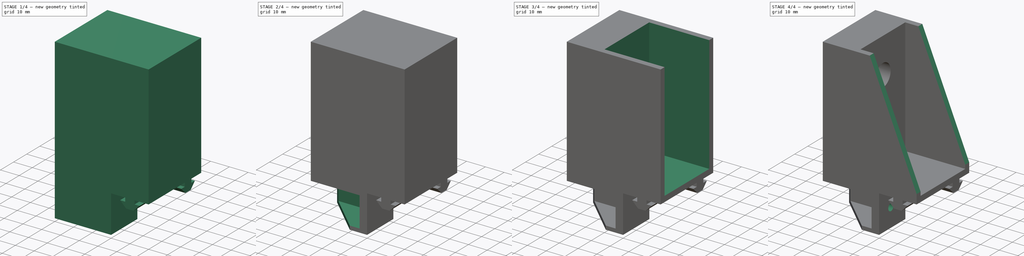
[diagram: build sequence overview — one tinted view per stage of 4, left to right]
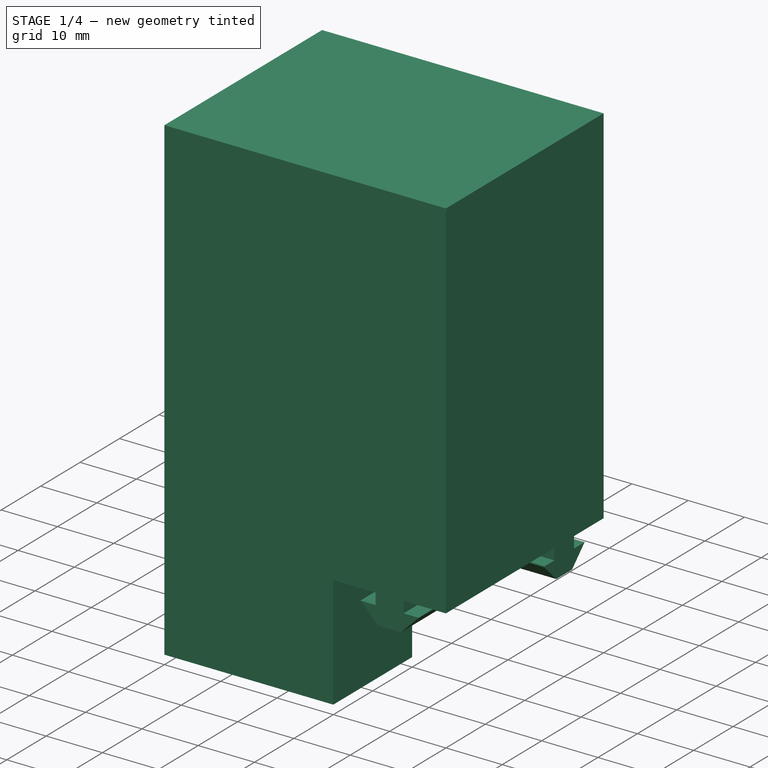
[diagram: stage 1 of 4 — iso view after this stage's code; geometry added in this stage tinted green]
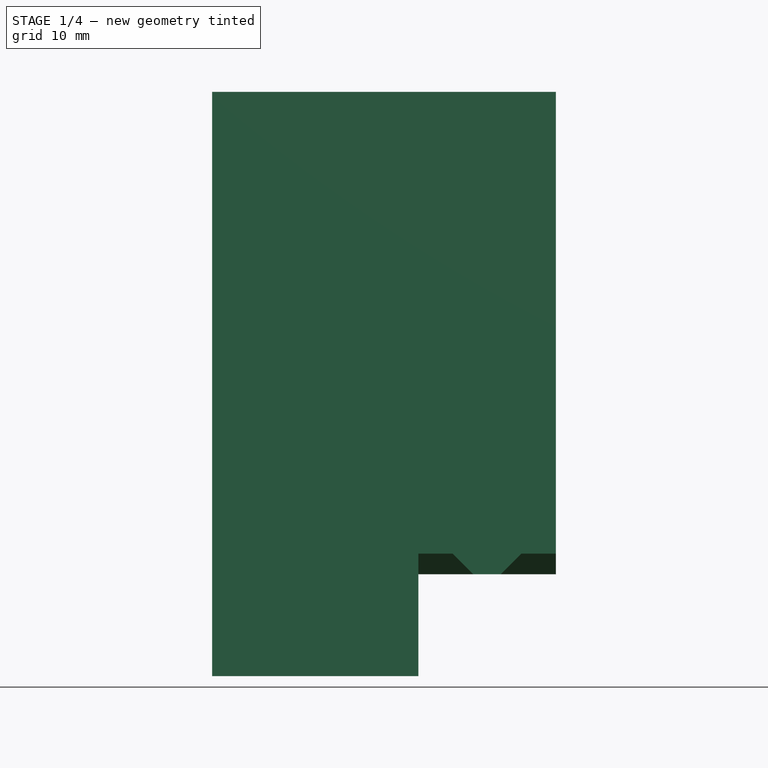
[diagram: stage 1 of 4 — front view after this stage's code; geometry added in this stage tinted green]
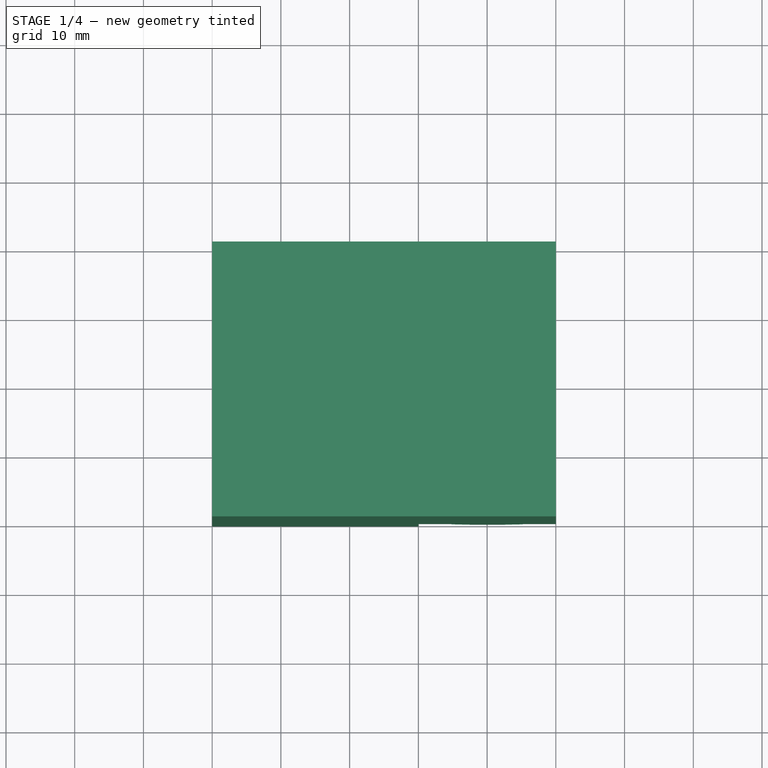
[diagram: stage 1 of 4 — top view after this stage's code; geometry added in this stage tinted green]
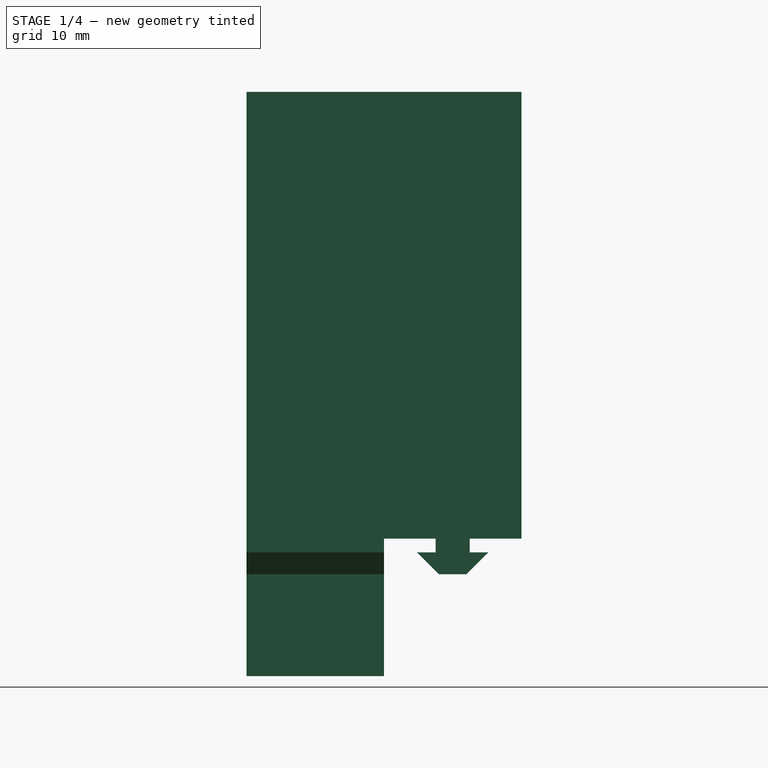
[diagram: stage 1 of 4 — right view after this stage's code; geometry added in this stage tinted green]
FCSTD DOCUMENT  (FreeCAD 0.18R4 (GitTag))
Label: corner-right-engine - Copie
License: All rights reserved
LicenseURL: http://en.wikipedia.org/wiki/All_rights_reserved
objects: Sketcher::SketchObject×11, PartDesign::Pocket×10, PartDesign::Pad×1, PartDesign::Body×1
note: 34 computed .brp shape members not serialized (recipe doc carries the construction recipe); baked Part::Feature solids carry a one-line shape summary decoded from their .brp

FEATURE [Sketcher::SketchObject] Sketch
  MapMode = 5
  Placement = pos=(0,0,0) rot=(0.57735,0.57735,0.57735;2.0944rad)
  Support = -> [YZ_Plane]
  sketch-geometry (4):
    g0: LineSegment StartX=-20 StartY=42.5 StartZ=0 EndX=20 EndY=42.5 EndZ=0
    g1: LineSegment StartX=20 StartY=42.5 StartZ=0 EndX=20 EndY=-42.5 EndZ=0
    g2: LineSegment StartX=20 StartY=-42.5 StartZ=0 EndX=-20 EndY=-42.5 EndZ=0
    g3: LineSegment StartX=-20 StartY=-42.5 StartZ=0 EndX=-20 EndY=42.5 EndZ=0
  constraints (11):
    c: Coincident(g0,g1)
    c: Coincident(g1,g2)
    c: Coincident(g2,g3)
    c: Coincident(g3,g0)
    c: Horizontal(g0)
    c: Horizontal(g2)
    c: Vertical(g1)
    c: Vertical(g3)
    c: DistanceY(g3,g3) = 85
    c: DistanceX(g2,g2) = 40
    c: Symmetric(g0,g1,g-1)
FEATURE [PartDesign::Pad] Pad
  Length = 50
  Length2 = 100
  Placement = pos=(0,0,0) rot=(0.57735,0.57735,0.57735;2.0944rad)
  Profile = -> Sketch
  Type = 0
FEATURE [Sketcher::SketchObject] Sketch001
  ExternalGeometry = -> [Pad]
  MapMode = 5
  Placement = pos=(50,-2.22e-14,1.67e-14) rot=(0.57735,0.57735,0.57735;2.0944rad)
  Support = -> [Pad]
  sketch-geometry (14):
    g0: LineSegment [constr] StartX=20 StartY=-22.5 StartZ=0 EndX=-7.1e-15 EndY=-22.5 EndZ=0
    g1: LineSegment StartX=-6e-15 StartY=-22.5 StartZ=0 EndX=-6e-15 EndY=-42.5 EndZ=0
    g2: LineSegment [constr] StartX=10 StartY=-22.5 StartZ=0 EndX=10 EndY=-44.2673 EndZ=0
    g3: LineSegment StartX=7.51604 StartY=-22.5 StartZ=0 EndX=7.51604 EndY=-24.5 EndZ=0
    g4: LineSegment StartX=7.51604 StartY=-24.5 StartZ=0 EndX=4.81604 EndY=-24.5 EndZ=0
    g5: LineSegment StartX=4.81604 StartY=-24.5 StartZ=0 EndX=8 EndY=-27.68 EndZ=0
    g6: LineSegment StartX=8 StartY=-27.68 StartZ=0 EndX=12 EndY=-27.68 EndZ=0
    g7: LineSegment StartX=12 StartY=-27.68 StartZ=0 EndX=15.184 EndY=-24.5 EndZ=0
    g8: LineSegment StartX=15.184 StartY=-24.5 StartZ=0 EndX=12.484 EndY=-24.5 EndZ=0
    g9: LineSegment StartX=12.484 StartY=-24.5 StartZ=0 EndX=12.484 EndY=-22.5 EndZ=0
    g10: LineSegment StartX=-6e-15 StartY=-42.5 StartZ=0 EndX=20 EndY=-42.5 EndZ=0
    g11: LineSegment StartX=20 StartY=-22.5 StartZ=0 EndX=20 EndY=-42.5 EndZ=0
    g12: LineSegment StartX=-6e-15 StartY=-22.5 StartZ=0 EndX=7.51604 EndY=-22.5 EndZ=0
    g13: LineSegment StartX=12.484 StartY=-22.5 StartZ=0 EndX=20 EndY=-22.5 EndZ=0
  constraints (38):
    c: PointOnObject(g0,g-3)
    c: Horizontal(g0)
    c: DistanceX(g0,g0) = 20
    c: DistanceY(g-4,g0) = 20
    c: Vertical(g1)
    c: Coincident(g1,g0)
    c: Vertical(g2)
    c: Symmetric(g0,g0,g2)
    c: Coincident(g3,g4)
    c: Coincident(g4,g5)
    c: Coincident(g5,g6)
    c: Coincident(g6,g7)
    c: Coincident(g7,g8)
    c: Coincident(g8,g9)
    c: Equal(g3,g9)
    c: DistanceY(g9,g9) = 2
    c: PointOnObject(g3,g0)
    c: PointOnObject(g9,g0)
    c: Horizontal(g8)
    c: Horizontal(g4)
    c: Equal(g4,g8)
    c: DistanceX(g4,g4) = 2.7
    c: Vertical(g3)
    c: Vertical(g9)
    c: DistanceX(g6,g6) = 4
    c: DistanceY(g6,g2) = 5.18
    c: Distance(g5) = 4.5
    c: Distance(g7) = 4.5
    c: Symmetric(g5,g6,g2)
    c: PointOnObject(g1,g-4)
    c: Coincident(g10,g1)
    c: Coincident(g10,g-4)
    c: Coincident(g11,g10)
    c: Coincident(g11,g0)
    c: Coincident(g13,g9)
    c: Coincident(g13,g0)
    c: Coincident(g12,g3)
    c: Coincident(g12,g0)
FEATURE [PartDesign::Pocket] Pocket
  BaseFeature = -> Pad
  Length = 50
  Length2 = 100
  Placement = pos=(0,0,0) rot=(0.57735,0.57735,0.57735;2.0944rad)
  Profile = -> Sketch001
  Type = 0
FEATURE [Sketcher::SketchObject] Sketch003
  ExternalGeometry = -> [Pocket]
  MapMode = 5
  Placement = pos=(-8.9e-15,-20,1.33e-14) rot=(0.57735,0.57735,-0.57735;2.0944rad)
  Support = -> [Pocket]
  sketch-geometry (14):
    g0: LineSegment StartX=42.5 StartY=50 StartZ=0 EndX=22.5 EndY=50 EndZ=0
    g1: LineSegment [constr] StartX=22.5 StartY=50 StartZ=0 EndX=22.5 EndY=30 EndZ=0
    g2: LineSegment StartX=22.5 StartY=30 StartZ=0 EndX=42.5 EndY=30 EndZ=0
    g3: LineSegment StartX=42.5 StartY=30 StartZ=0 EndX=42.5 EndY=50 EndZ=0
    g4: LineSegment [constr] StartX=22.5 StartY=40 StartZ=0 EndX=45.4843 EndY=40 EndZ=0
    g5: LineSegment StartX=22.5 StartY=37.52 StartZ=0 EndX=24.5 EndY=37.52 EndZ=0
    g6: LineSegment StartX=24.5 StartY=37.52 StartZ=0 EndX=24.5 EndY=34.82 EndZ=0
    g7: LineSegment StartX=24.5 StartY=34.82 StartZ=0 EndX=27.68 EndY=38 EndZ=0
    g8: LineSegment StartX=27.68 StartY=38 StartZ=0 EndX=27.68 EndY=42 EndZ=0
    g9: LineSegment StartX=27.68 StartY=42 StartZ=0 EndX=24.5 EndY=45.18 EndZ=0
    g10: LineSegment StartX=24.5 StartY=45.18 StartZ=0 EndX=24.5 EndY=42.48 EndZ=0
    g11: LineSegment StartX=24.5 StartY=42.48 StartZ=0 EndX=22.5 EndY=42.48 EndZ=0
    g12: LineSegment StartX=22.5 StartY=37.52 StartZ=0 EndX=22.5 EndY=30 EndZ=0
    g13: LineSegment StartX=22.5 StartY=42.48 StartZ=0 EndX=22.5 EndY=50 EndZ=0
  constraints (38):
    c: Coincident(g0,g1)
    c: Coincident(g1,g2)
    c: Coincident(g2,g3)
    c: Coincident(g3,g0)
    c: Horizontal(g0)
    c: Horizontal(g2)
    c: Vertical(g1)
    c: Vertical(g3)
    c: Equal(g1,g0)
    c: Coincident(g-4,g0)
    c: DistanceY(g1,g1) = 20
    c: Horizontal(g4)
    c: Symmetric(g1,g0,g4)
    c: Coincident(g5,g6)
    c: Coincident(g6,g7)
    c: Coincident(g7,g8)
    c: Coincident(g8,g9)
    c: Coincident(g9,g10)
    c: Coincident(g10,g11)
    c: Equal(g5,g11)
    c: Horizontal(g11)
    c: Horizontal(g5)
    c: Vertical(g10)
    c: Vertical(g6)
    c: PointOnObject(g11,g1)
    c: PointOnObject(g5,g1)
    c: DistanceX(g11,g11) = 2
    c: Equal(g10,g6)
    c: DistanceY(g10,g10) = 2.7
    c: Angle(g10,g9) = 0.785398
    c: Angle(g7,g6) = 0.785398
    c: DistanceX(g5,g8) = 5.18
    c: DistanceY(g8,g8) = 4
    c: Symmetric(g8,g7,g4)
    c: Coincident(g12,g5)
    c: Coincident(g12,g1)
    c: Coincident(g13,g0)
    c: Coincident(g13,g11)
FEATURE [PartDesign::Pocket] Pocket001
  BaseFeature = -> Pocket
  Length = 25
  Length2 = 100
  Placement = pos=(0,0,0) rot=(0.57735,0.57735,0.57735;2.0944rad)
  Profile = -> Sketch003
  Type = 0
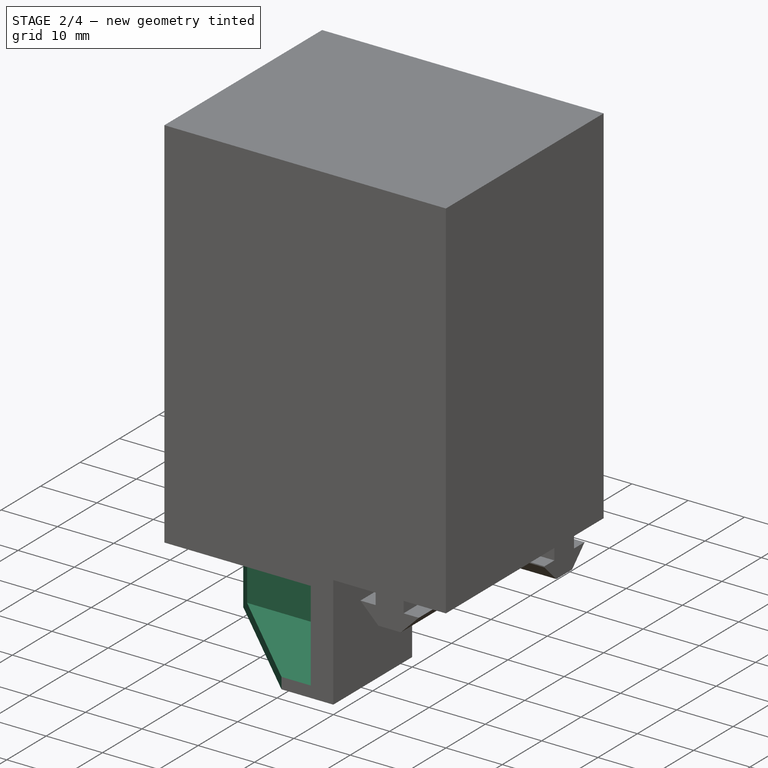
[diagram: stage 2 of 4 — iso view after this stage's code; geometry added in this stage tinted green]
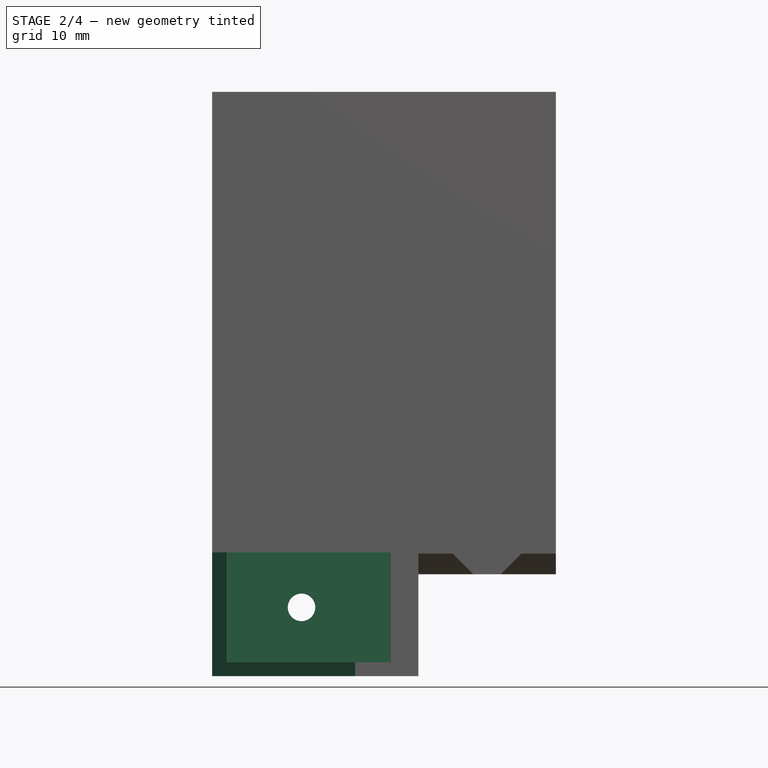
[diagram: stage 2 of 4 — front view after this stage's code; geometry added in this stage tinted green]
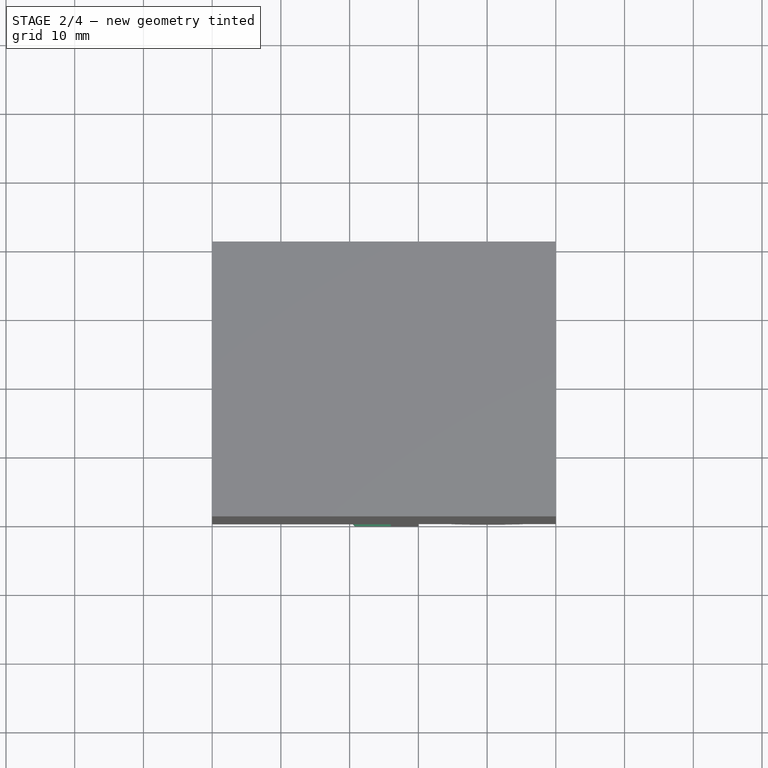
[diagram: stage 2 of 4 — top view after this stage's code; geometry added in this stage tinted green]
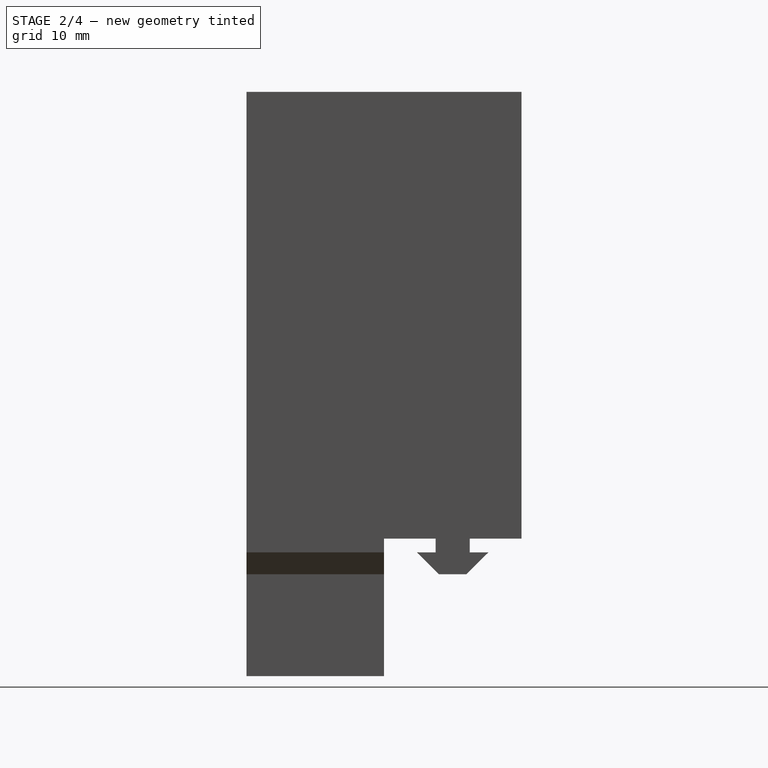
[diagram: stage 2 of 4 — right view after this stage's code; geometry added in this stage tinted green]
FEATURE [Sketcher::SketchObject] Sketch004
  ExternalGeometry = -> [Pocket001]
  MapMode = 5
  Placement = pos=(-8.9e-15,-20,2e-14) rot=(0.57735,0.57735,-0.57735;2.0944rad)
  Support = -> [Pocket001]
  sketch-geometry (9):
    g0: LineSegment [constr] StartX=42.5 StartY=30 StartZ=0 EndX=22.5 EndY=30 EndZ=0
    g1: LineSegment [constr] StartX=22.5 StartY=30 StartZ=0 EndX=22.5 EndY=7.1e-15 EndZ=0
    g2: LineSegment [constr] StartX=22.5 StartY=7.1e-15 StartZ=0 EndX=42.5 EndY=7.1e-15 EndZ=0
    g3: LineSegment [constr] StartX=42.5 StartY=7.1e-15 StartZ=0 EndX=42.5 EndY=30 EndZ=0
    g4: LineSegment StartX=24.5 StartY=26 StartZ=0 EndX=40.5 EndY=26 EndZ=0
    g5: LineSegment StartX=40.5 StartY=26 StartZ=0 EndX=40.5 EndY=7.1e-15 EndZ=0
    g6: LineSegment [constr] StartX=40.5 StartY=7.1e-15 StartZ=0 EndX=24.5 EndY=7.1e-15 EndZ=0
    g7: LineSegment StartX=24.5 StartY=7.1e-15 StartZ=0 EndX=24.5 EndY=26 EndZ=0
    g8: LineSegment StartX=24.5 StartY=7.1e-15 StartZ=0 EndX=40.5 EndY=7.1e-15 EndZ=0
  constraints (24):
    c: Coincident(g0,g1)
    c: Coincident(g1,g2)
    c: Coincident(g2,g3)
    c: Coincident(g3,g0)
    c: Horizontal(g0)
    c: Horizontal(g2)
    c: Vertical(g1)
    c: Coincident(g0,g-3)
    c: Coincident(g2,g-4)
    c: DistanceX(g0,g0) = 20
    c: Coincident(g4,g5)
    c: Coincident(g5,g6)
    c: Coincident(g6,g7)
    c: Coincident(g7,g4)
    c: Horizontal(g4)
    c: Horizontal(g6)
    c: Vertical(g5)
    c: Vertical(g7)
    c: PointOnObject(g5,g2)
    c: DistanceY(g4,g0) = 4
    c: DistanceX(g5,g2) = 2
    c: DistanceX(g1,g6) = 2
    c: Coincident(g8,g7)
    c: Coincident(g8,g5)
FEATURE [PartDesign::Pocket] Pocket002
  BaseFeature = -> Pocket001
  Length = 18
  Length2 = 100
  Placement = pos=(0,0,0) rot=(0.57735,0.57735,0.57735;2.0944rad)
  Profile = -> Sketch004
  Type = 0
FEATURE [Sketcher::SketchObject] Sketch005
  ExternalGeometry = -> [Pocket002]
  MapMode = 5
  Placement = pos=(-1.4e-15,-2,2.4e-15) rot=(0.57735,0.57735,-0.57735;2.0944rad)
  Support = -> [Pocket002]
  sketch-geometry (1):
    g0: Circle CenterX=32.5 CenterY=13 CenterZ=0 NormalX=0 NormalY=0 NormalZ=1 AngleXU=0 Radius=2
  constraints (4):
    c: DistanceY(g-5,g0) = 13
    c: Diameter(g0) = 4
    c: DistanceX(g-4,g-4) = 16
    c: DistanceX(g0,g-6) = 8
FEATURE [PartDesign::Pocket] Pocket003
  BaseFeature = -> Pocket002
  Length = 4
  Length2 = 100
  Placement = pos=(0,0,0) rot=(0.57735,0.57735,0.57735;2.0944rad)
  Profile = -> Sketch005
  Type = 0
FEATURE [Sketcher::SketchObject] Sketch007
  MapMode = 5
  Placement = pos=(1.2e-14,-2.8e-14,-42.5) rot=(0.707107,0.707107,0;3.14159rad)
  sketch-geometry (3):
    g0: LineSegment StartX=-25.0027 StartY=26 StartZ=0 EndX=-25 EndY=-1.07e-14 EndZ=0
    g1: LineSegment StartX=-25 StartY=-1.07e-14 StartZ=0 EndX=0 EndY=0 EndZ=0
    g2: LineSegment StartX=0 StartY=0 StartZ=0 EndX=-25.0027 EndY=26 EndZ=0
  constraints (4):
    c: Coincident(g0,g1)
    c: Coincident(g2,g0)
    c: Coincident(g2,g1)
    c: Coincident(g1,g-1)
FEATURE [PartDesign::Pocket] Pocket005
  BaseFeature = -> Pocket003
  Length = 18
  Length2 = 100
  Placement = pos=(0,0,0) rot=(0.57735,0.57735,0.57735;2.0944rad)
  Profile = -> Sketch007
  Type = 0
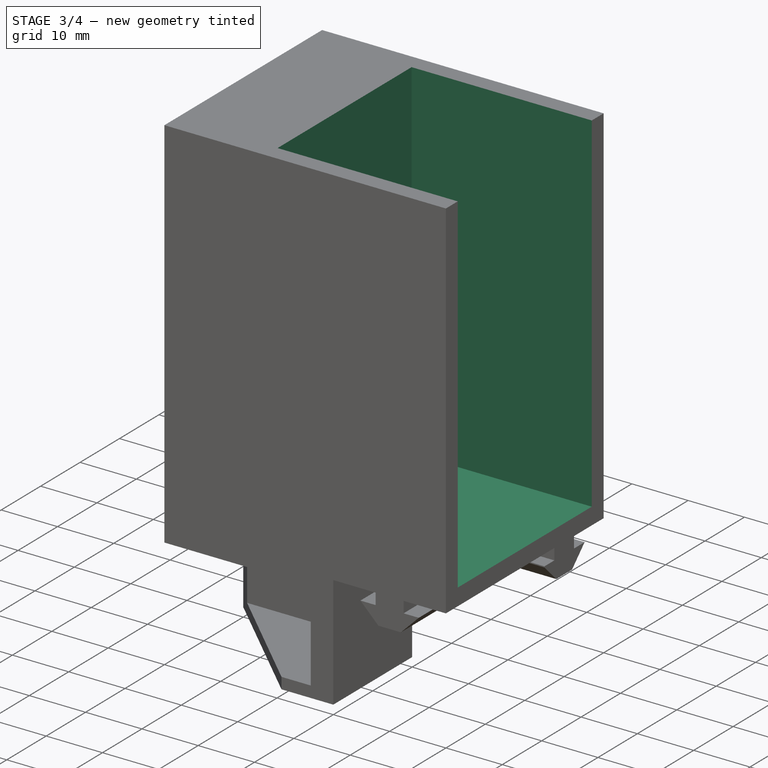
[diagram: stage 3 of 4 — iso view after this stage's code; geometry added in this stage tinted green]
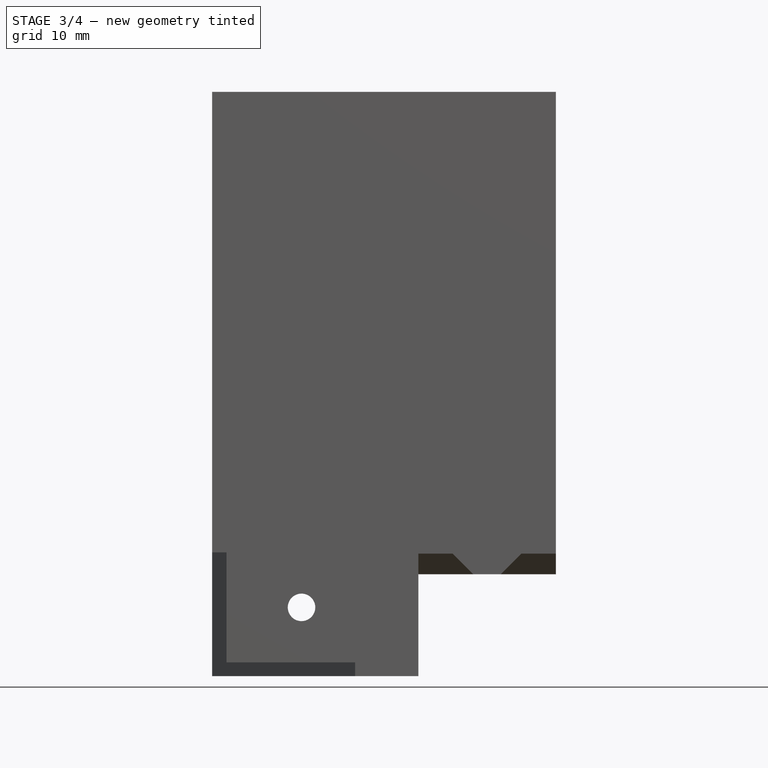
[diagram: stage 3 of 4 — front view after this stage's code; geometry added in this stage tinted green]
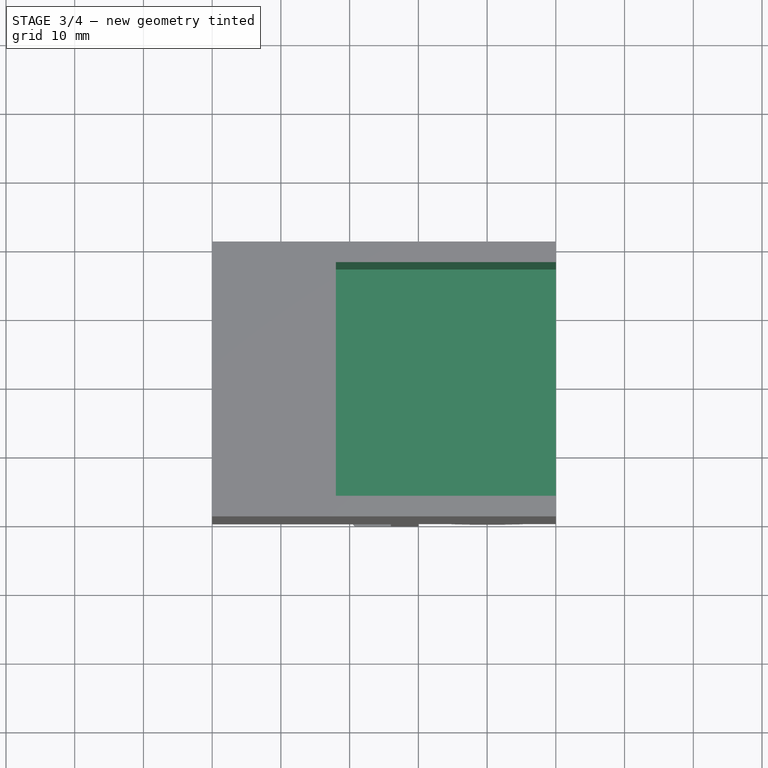
[diagram: stage 3 of 4 — top view after this stage's code; geometry added in this stage tinted green]
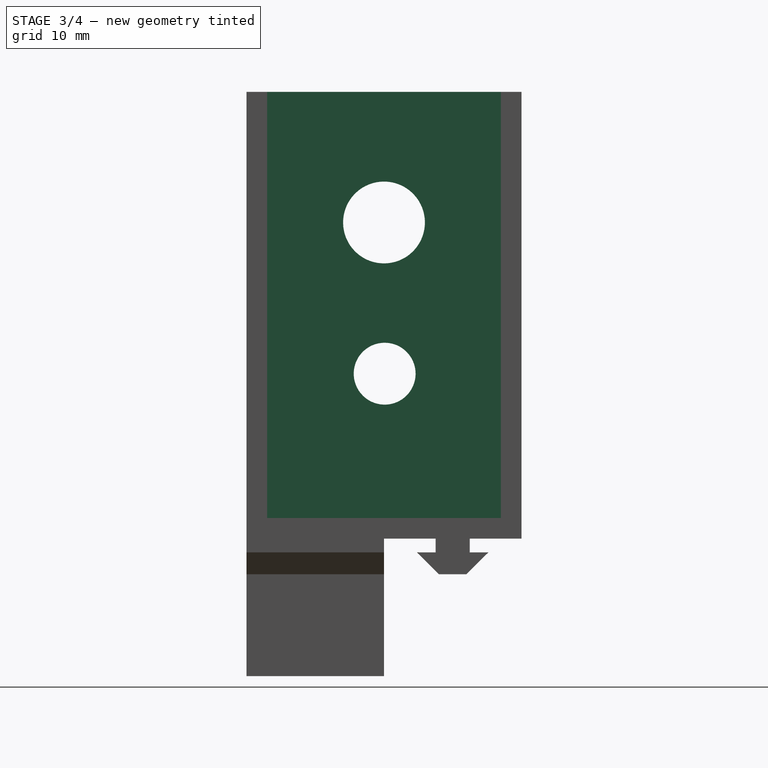
[diagram: stage 3 of 4 — right view after this stage's code; geometry added in this stage tinted green]
FEATURE [Sketcher::SketchObject] Sketch008
  ExternalGeometry = -> [Pocket005]
  MapMode = 5
  Placement = pos=(50,-7.77e-14,4.44e-14) rot=(0.57735,0.57735,0.57735;2.0944rad)
  Support = -> [Pocket005]
  sketch-geometry (4):
    g0: LineSegment StartX=-17 StartY=42.5 StartZ=0 EndX=17 EndY=42.5 EndZ=0
    g1: LineSegment StartX=17 StartY=42.5 StartZ=0 EndX=17 EndY=-19.5 EndZ=0
    g2: LineSegment StartX=17 StartY=-19.5 StartZ=0 EndX=-17 EndY=-19.5 EndZ=0
    g3: LineSegment StartX=-17 StartY=-19.5 StartZ=0 EndX=-17 EndY=42.5 EndZ=0
  constraints (12):
    c: Coincident(g0,g1)
    c: Coincident(g1,g2)
    c: Coincident(g2,g3)
    c: Coincident(g3,g0)
    c: Horizontal(g0)
    c: Horizontal(g2)
    c: Vertical(g1)
    c: Vertical(g3)
    c: PointOnObject(g0,g-3)
    c: DistanceY(g-7,g2) = 5
    c: DistanceX(g-7,g0) = 3
    c: DistanceX(g0,g-4) = 3
FEATURE [PartDesign::Pocket] Pocket006
  BaseFeature = -> Pocket005
  Length = 32
  Length2 = 100
  Placement = pos=(0,0,0) rot=(0.57735,0.57735,0.57735;2.0944rad)
  Profile = -> Sketch008
  Type = 0
FEATURE [Sketcher::SketchObject] Sketch009
  ExternalGeometry = -> [Pocket006]
  MapMode = 5
  Placement = pos=(18,-3.03e-14,1.85e-14) rot=(0.57735,0.57735,0.57735;2.0944rad)
  Support = -> [Pocket006]
  sketch-geometry (7):
    g0: Circle [constr] CenterX=0.0957466 CenterY=1.5 CenterZ=0 NormalX=0 NormalY=0 NormalZ=1 AngleXU=0 Radius=10.85
    g1: Circle CenterX=0 CenterY=23.5 CenterZ=0 NormalX=0 NormalY=0 NormalZ=1 AngleXU=0 Radius=5.95
    g2: LineSegment [constr] StartX=-20.9043 StartY=22.5 StartZ=0 EndX=21.0957 EndY=22.5 EndZ=0
    g3: LineSegment [constr] StartX=21.0957 StartY=22.5 StartZ=0 EndX=21.0957 EndY=-19.5 EndZ=0
    g4: LineSegment [constr] StartX=21.0957 StartY=-19.5 StartZ=0 EndX=-20.9043 EndY=-19.5 EndZ=0
    g5: LineSegment [constr] StartX=-20.9043 StartY=-19.5 StartZ=0 EndX=-20.9043 EndY=22.5 EndZ=0
    g6: Circle CenterX=0.0957466 CenterY=1.5 CenterZ=0 NormalX=0 NormalY=0 NormalZ=1 AngleXU=0 Radius=4.5
  constraints (18):
    c: PointOnObject(g1,g-2)
    c: Diameter(g0) = 21.7
    c: DistanceY(g0,g1) = 22
    c: Diameter(g1) = 11.9
    c: Coincident(g2,g3)
    c: Coincident(g3,g4)
    c: Coincident(g4,g5)
    c: Coincident(g5,g2)
    c: Horizontal(g2)
    c: Horizontal(g4)
    c: Vertical(g3)
    c: Vertical(g5)
    c: Equal(g2,g5)
    c: DistanceX(g2,g2) = 42
    c: Symmetric(g2,g3,g0)
    c: Diameter(g6) = 9
    c: Coincident(g6,g0)
    c: DistanceY(g-5,g3) = 5
FEATURE [PartDesign::Pocket] Pocket007
  BaseFeature = -> Pocket006
  Length = 1
  Length2 = 100
  Placement = pos=(0,0,0) rot=(0.57735,0.57735,0.57735;2.0944rad)
  Profile = -> Sketch009
  Type = 1
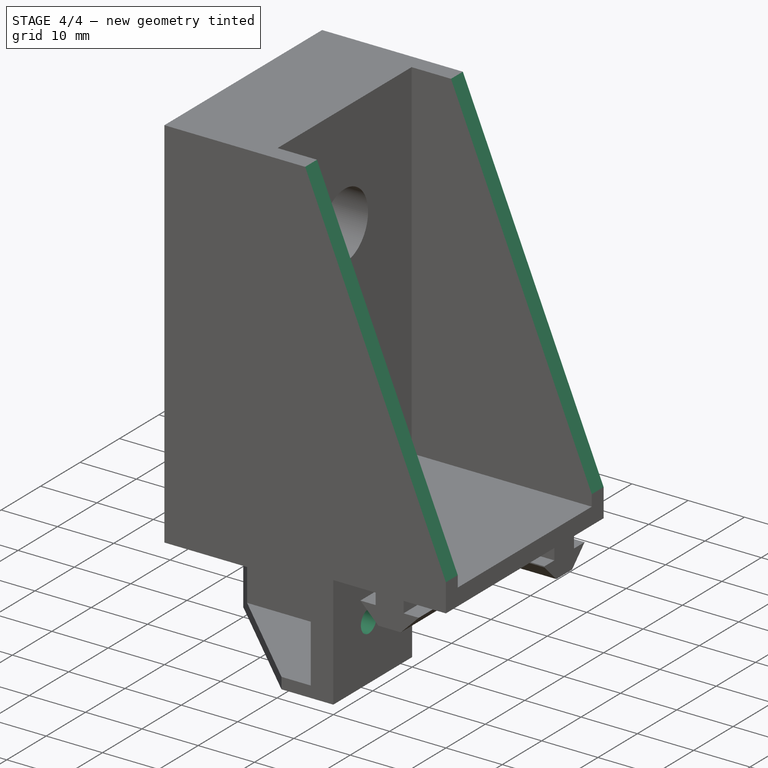
[diagram: stage 4 of 4 — iso view after this stage's code; geometry added in this stage tinted green]
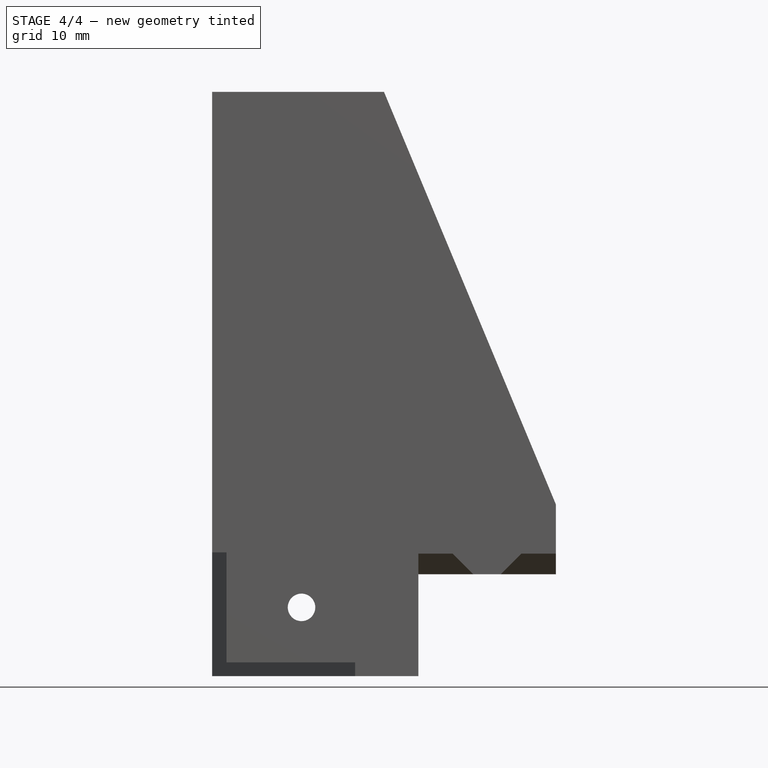
[diagram: stage 4 of 4 — front view after this stage's code; geometry added in this stage tinted green]
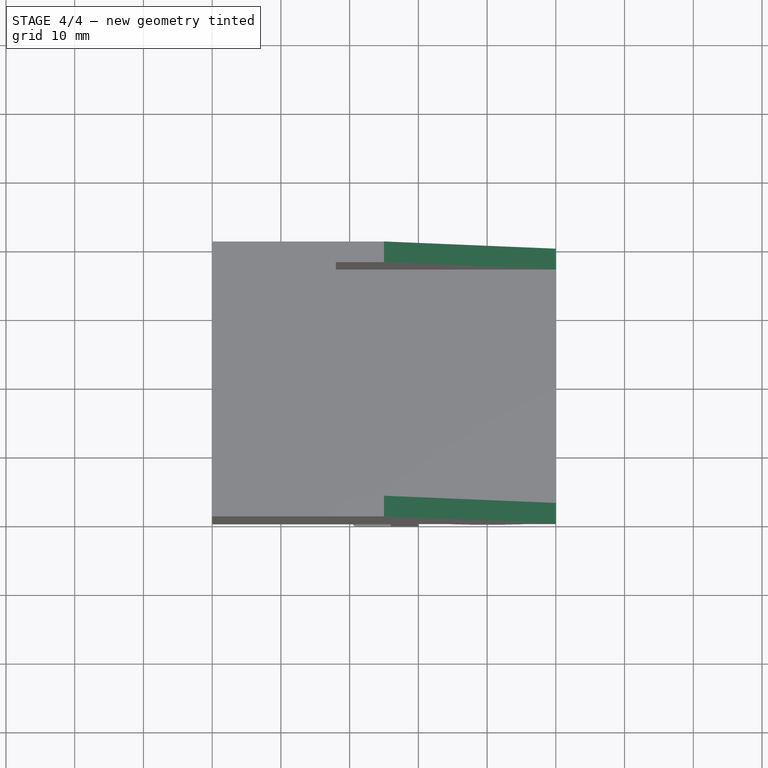
[diagram: stage 4 of 4 — top view after this stage's code; geometry added in this stage tinted green]
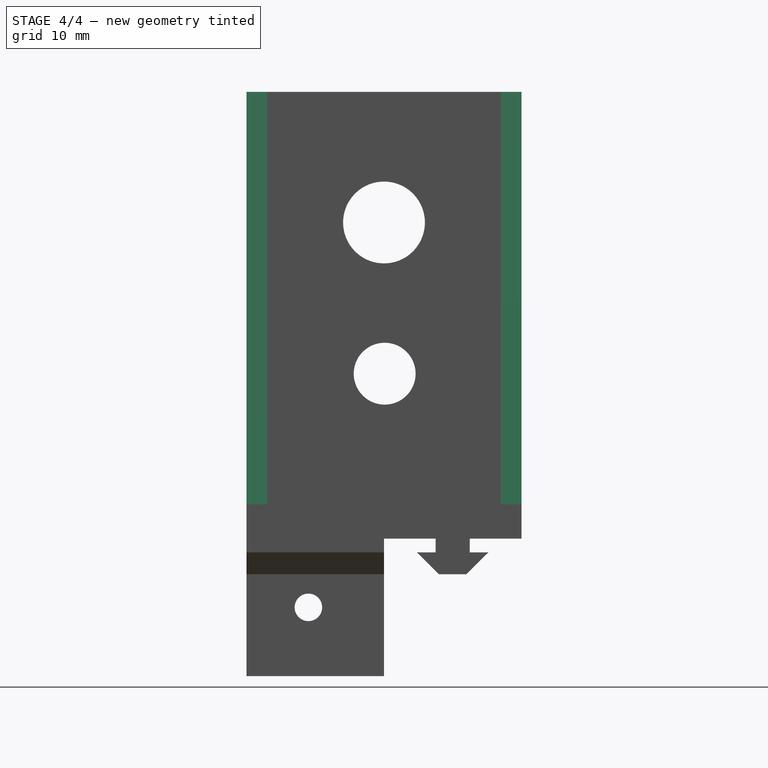
[diagram: stage 4 of 4 — right view after this stage's code; geometry added in this stage tinted green]
FEATURE [Sketcher::SketchObject] Sketch010
  ExternalGeometry = -> [Pocket007]
  MapMode = 5
  Placement = pos=(0,0,0) rot=(-0.57735,-0.57735,0.57735;2.0944rad)
  Support = -> [Pocket007]
  sketch-geometry (1):
    g0: Circle CenterX=0.0957466 CenterY=-1.5 CenterZ=0 NormalX=0 NormalY=0 NormalZ=1 AngleXU=0 Radius=10.85
  constraints (2):
    c: Coincident(g0,g-3)
    c: Diameter(g0) = 21.7
FEATURE [PartDesign::Pocket] Pocket008
  BaseFeature = -> Pocket007
  Length = 8
  Length2 = 100
  Placement = pos=(0,0,0) rot=(0.57735,0.57735,0.57735;2.0944rad)
  Profile = -> Sketch010
  Type = 0
FEATURE [Sketcher::SketchObject] Sketch011
  ExternalGeometry = -> [Pocket008]
  MapMode = 5
  Placement = pos=(8.9e-15,20,-6e-14) rot=(0.57735,0.57735,0.57735;4.18879rad)
  Support = -> [Pocket008]
  sketch-geometry (3):
    g0: LineSegment StartX=-17.5 StartY=50 StartZ=0 EndX=42.5 EndY=25 EndZ=0
    g1: LineSegment StartX=42.5 StartY=25 StartZ=0 EndX=42.5 EndY=50 EndZ=0
    g2: LineSegment StartX=42.5 StartY=50 StartZ=0 EndX=-17.5 EndY=50 EndZ=0
  constraints (8):
    c: Coincident(g0,g1)
    c: Coincident(g1,g2)
    c: Coincident(g0,g2)
    c: Horizontal(g2)
    c: Vertical(g1)
    c: DistanceY(g1,g1) = 25
    c: DistanceX(g-3,g0) = 5
    c: Coincident(g1,g-4)
FEATURE [PartDesign::Pocket] Pocket009
  BaseFeature = -> Pocket008
  Length = 5
  Length2 = 100
  Placement = pos=(0,0,0) rot=(0.57735,0.57735,0.57735;2.0944rad)
  Profile = -> Sketch011
  Type = 1
FEATURE [Sketcher::SketchObject] Sketch012
  ExternalGeometry = -> [Pocket009]
  MapMode = 5
  Placement = pos=(26,-4.91e-14,2.6e-14) rot=(-0.57735,-0.57735,0.57735;2.0944rad)
  Support = -> [Pocket009]
  sketch-geometry (1):
    g0: Circle CenterX=-11 CenterY=32.5 CenterZ=0 NormalX=0 NormalY=0 NormalZ=1 AngleXU=0 Radius=2
  constraints (2):
    c: Diameter(g0) = 4
    c: Symmetric(g-3,g-4,g0)
FEATURE [PartDesign::Pocket] Pocket010
  BaseFeature = -> Pocket009
  Length = 5
  Length2 = 100
  Placement = pos=(0,0,0) rot=(0.57735,0.57735,0.57735;2.0944rad)
  Profile = -> Sketch012
  Type = 0
FEATURE [PartDesign::Body] Body
  Group = -> [Sketch,Pad,Sketch001,Pocket,Sketch003,Pocket001,Sketch004,Pocket002,Sketch005,Pocket003,Sketch007,Pocket005,Sketch008,Pocket006,Sketch009,Pocket007,Sketch010,Pocket008,Sketch011,Pocket009,Sketch012,Pocket010]
  Origin = -> Origin
  Tip = -> Pocket010
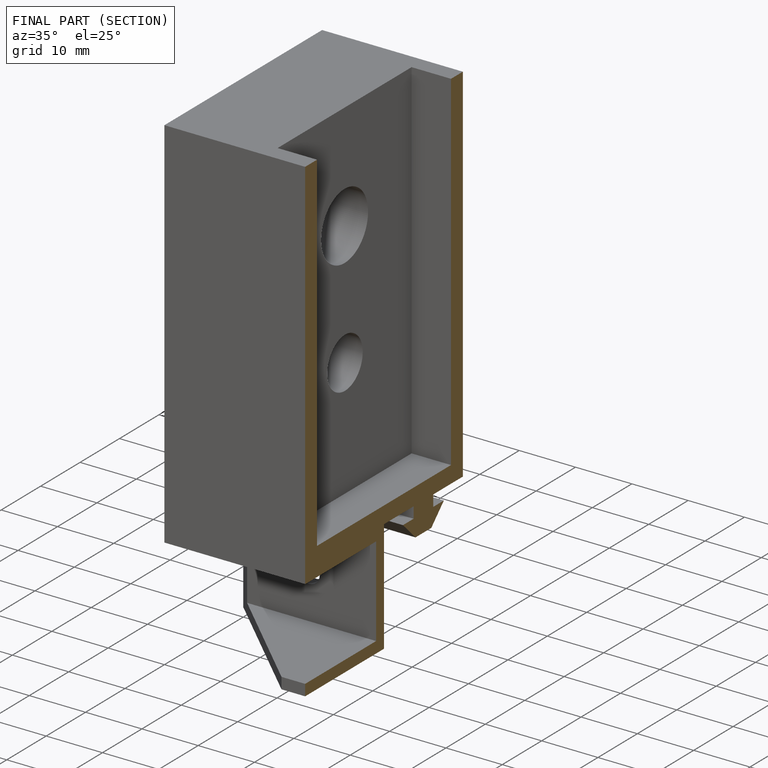
[diagram: finished part — half-section view (interior)]
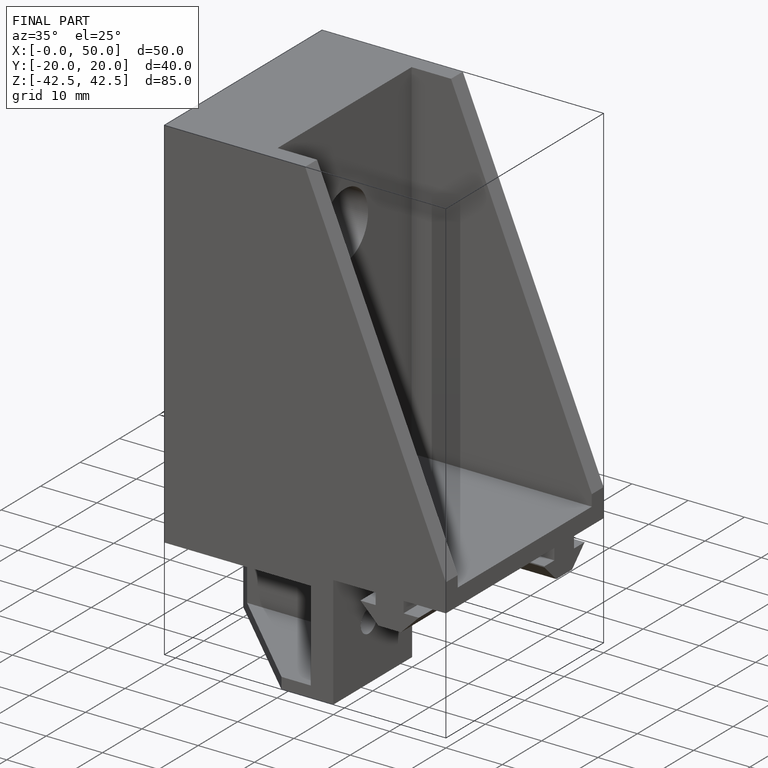
[diagram: finished part — iso view with bounding-box wireframe]
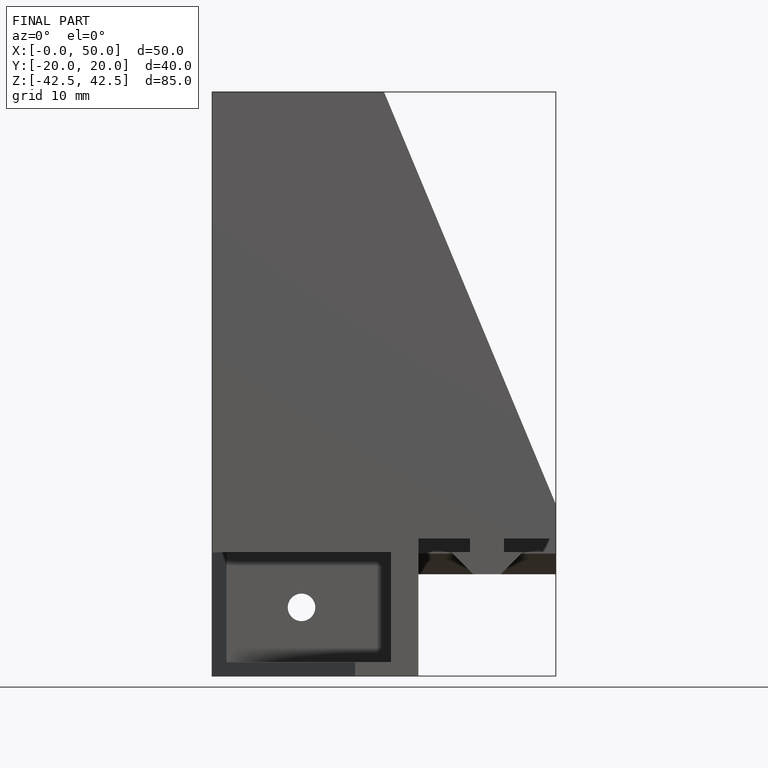
[diagram: finished part — front view with bounding-box wireframe]
